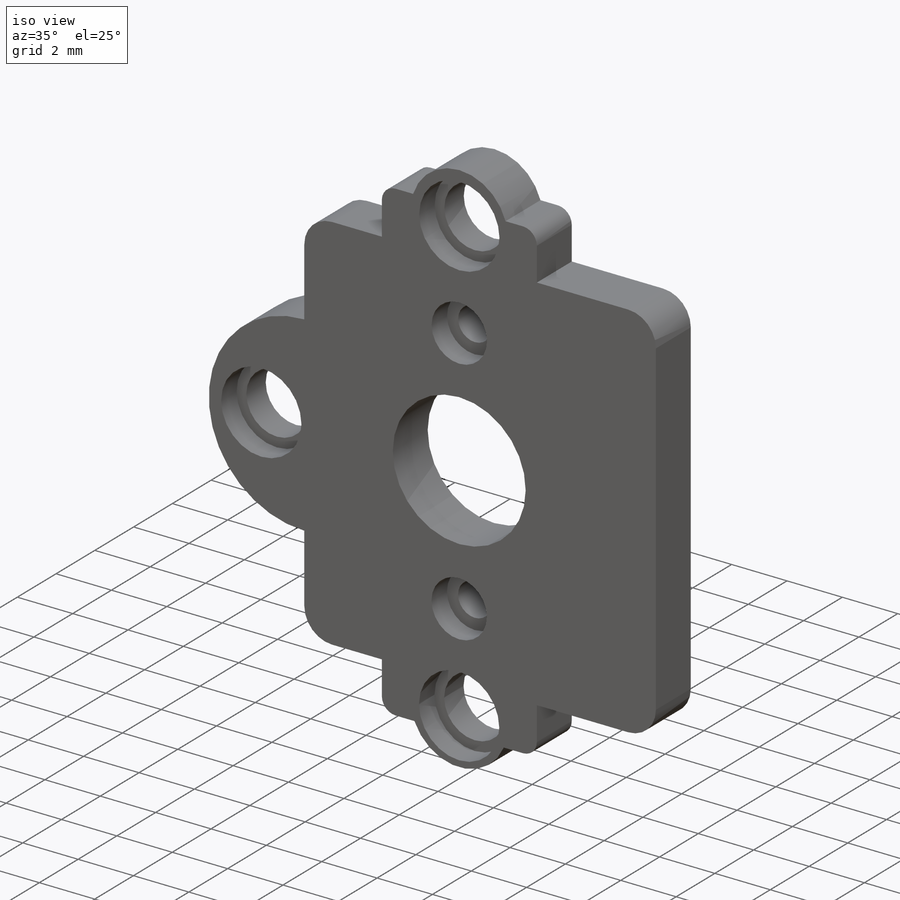
[diagram: iso view]
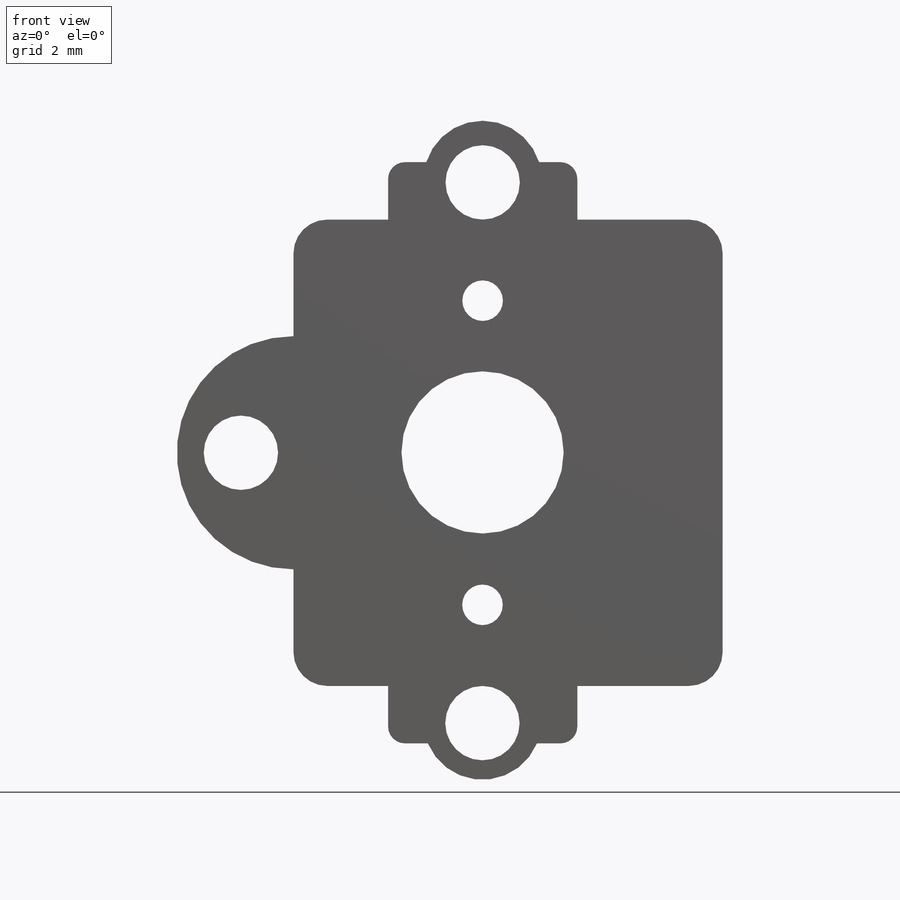
[diagram: front view]
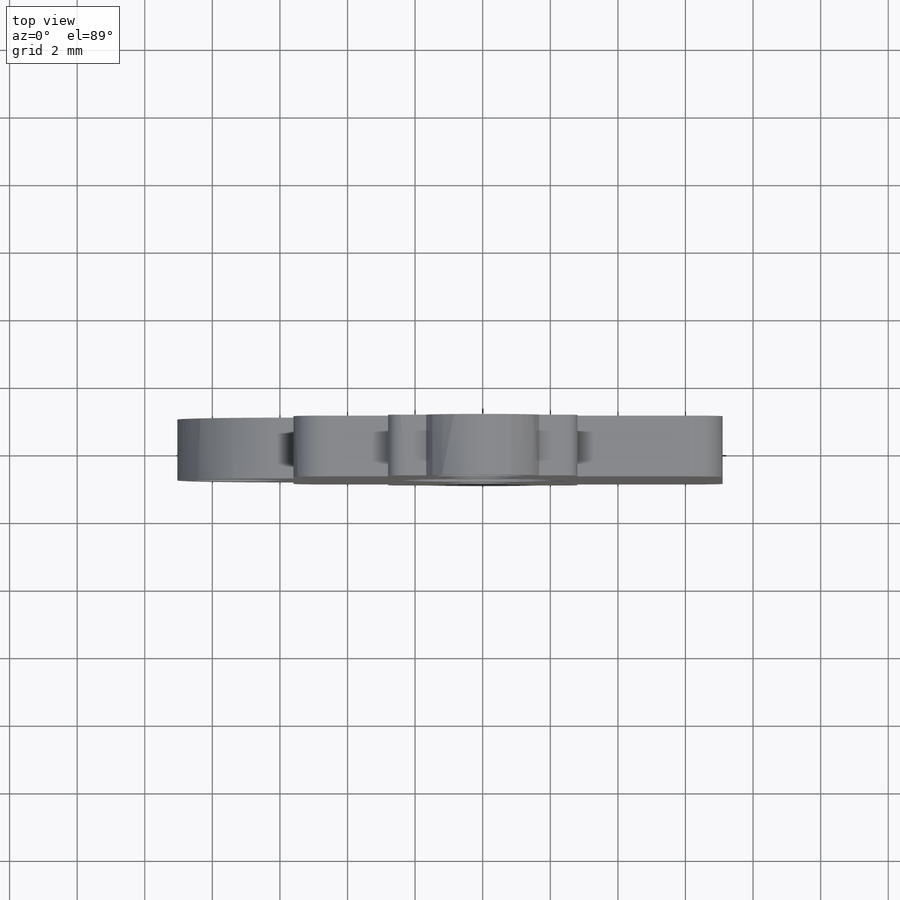
[diagram: top view]
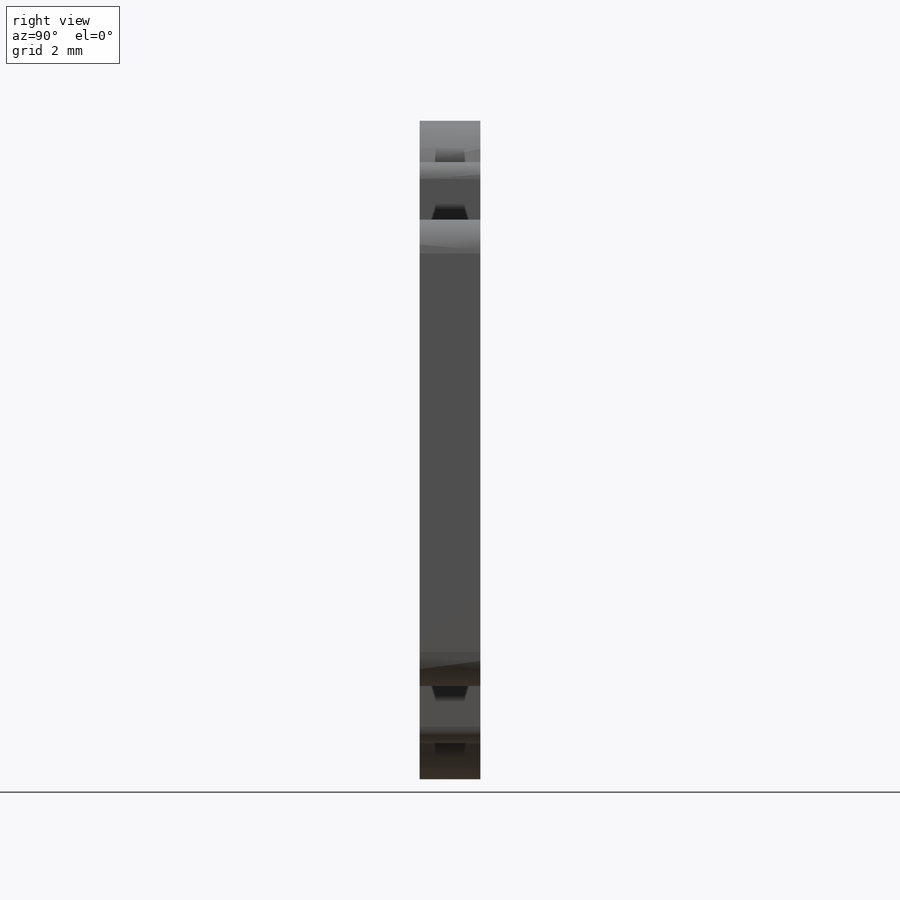
[diagram: right view]
SOLIDWORKS PART (.sldprt)
format: sldprt  version: not decoded by parser v0  size: 332,288 bytes
history: native  units: mm
features: sketch x6, plane x3, extrude x3, cut_extrude x3, fillet x2, material x1 (+10 scaffold rows collapsed)
feature tree (28):
  scaffold x10  (default folders/planes/origin — collapsed)
  material  "Material <nicht angegeben>"
  plane  "Ebene vorne"
  plane  "Ebene oben"
  plane  "Ebene rechts"
  sketch  "body"  dims[c1.D1=5.6mm c1.D2=5.6mm c2.D1=5.6mm c2.D2=17.2mm c2.D3=2.8mm c2.D4=13.8mm c2.D5=17.2mm]
  extrude  "body_"  Depth=1.8mm
  sketch  "side_extender"  dims[c1.D1=~1.395525mm c1.D2=3.5mm c2.D1=~3.96416mm c2.D2=3.5mm c3.D1=8.0mm c3.D3=16.0mm c4.D1=16.0mm c4.D2=~16.000002mm]
  extrude  "side-extender"  Depth=1.8mm
  sketch  "center-extern"  dims[c1.D3=3.45mm c1.D1=~2.625087mm c1.D2=~31.566712mm c2.D1=~13.810956mm c2.D2=~3.962882mm c3.D1=13.8mm c3.D2=3.0mm c3.D3=~7.929096mm]
  extrude  "Extender-center"  Depth=1.8mm
  sketch  "holes"  dims[c1.D1=~2.121578mm c1.D2=2.2mm c1.D3=2.2mm c1.D4=~2.40692mm c1.D6=1.2mm c1.D9=4.5mm c1.7.15=7.15mm c2.D4=8.0mm c2.D5=8.0mm c2.D7=4.5mm c2.D8=4.5mm]
  cut_extrude  "screw-holes"  Depth=1.8mm
  sketch  "shaft hole"  dims[D1=~8.494154mm]
  cut_extrude  "motor shaft"  Depth=1.8mm
  sketch  "Skizze6"  dims[D1=2.0mm D2=2.9mm]
  cut_extrude  "Schnitt-Linear austragen5"  Depth=0.8mm
  fillet  "Verrundung1"  Radius=1mm
  fillet  "Verrundung2"  Radius=0.5mm
decode coverage: 14 of 14 modeling features carry decoded parameters
note: ~ marks probable driven/reference dimensions
note: suppression state not decoded; provenance and decode notes live in map.json
